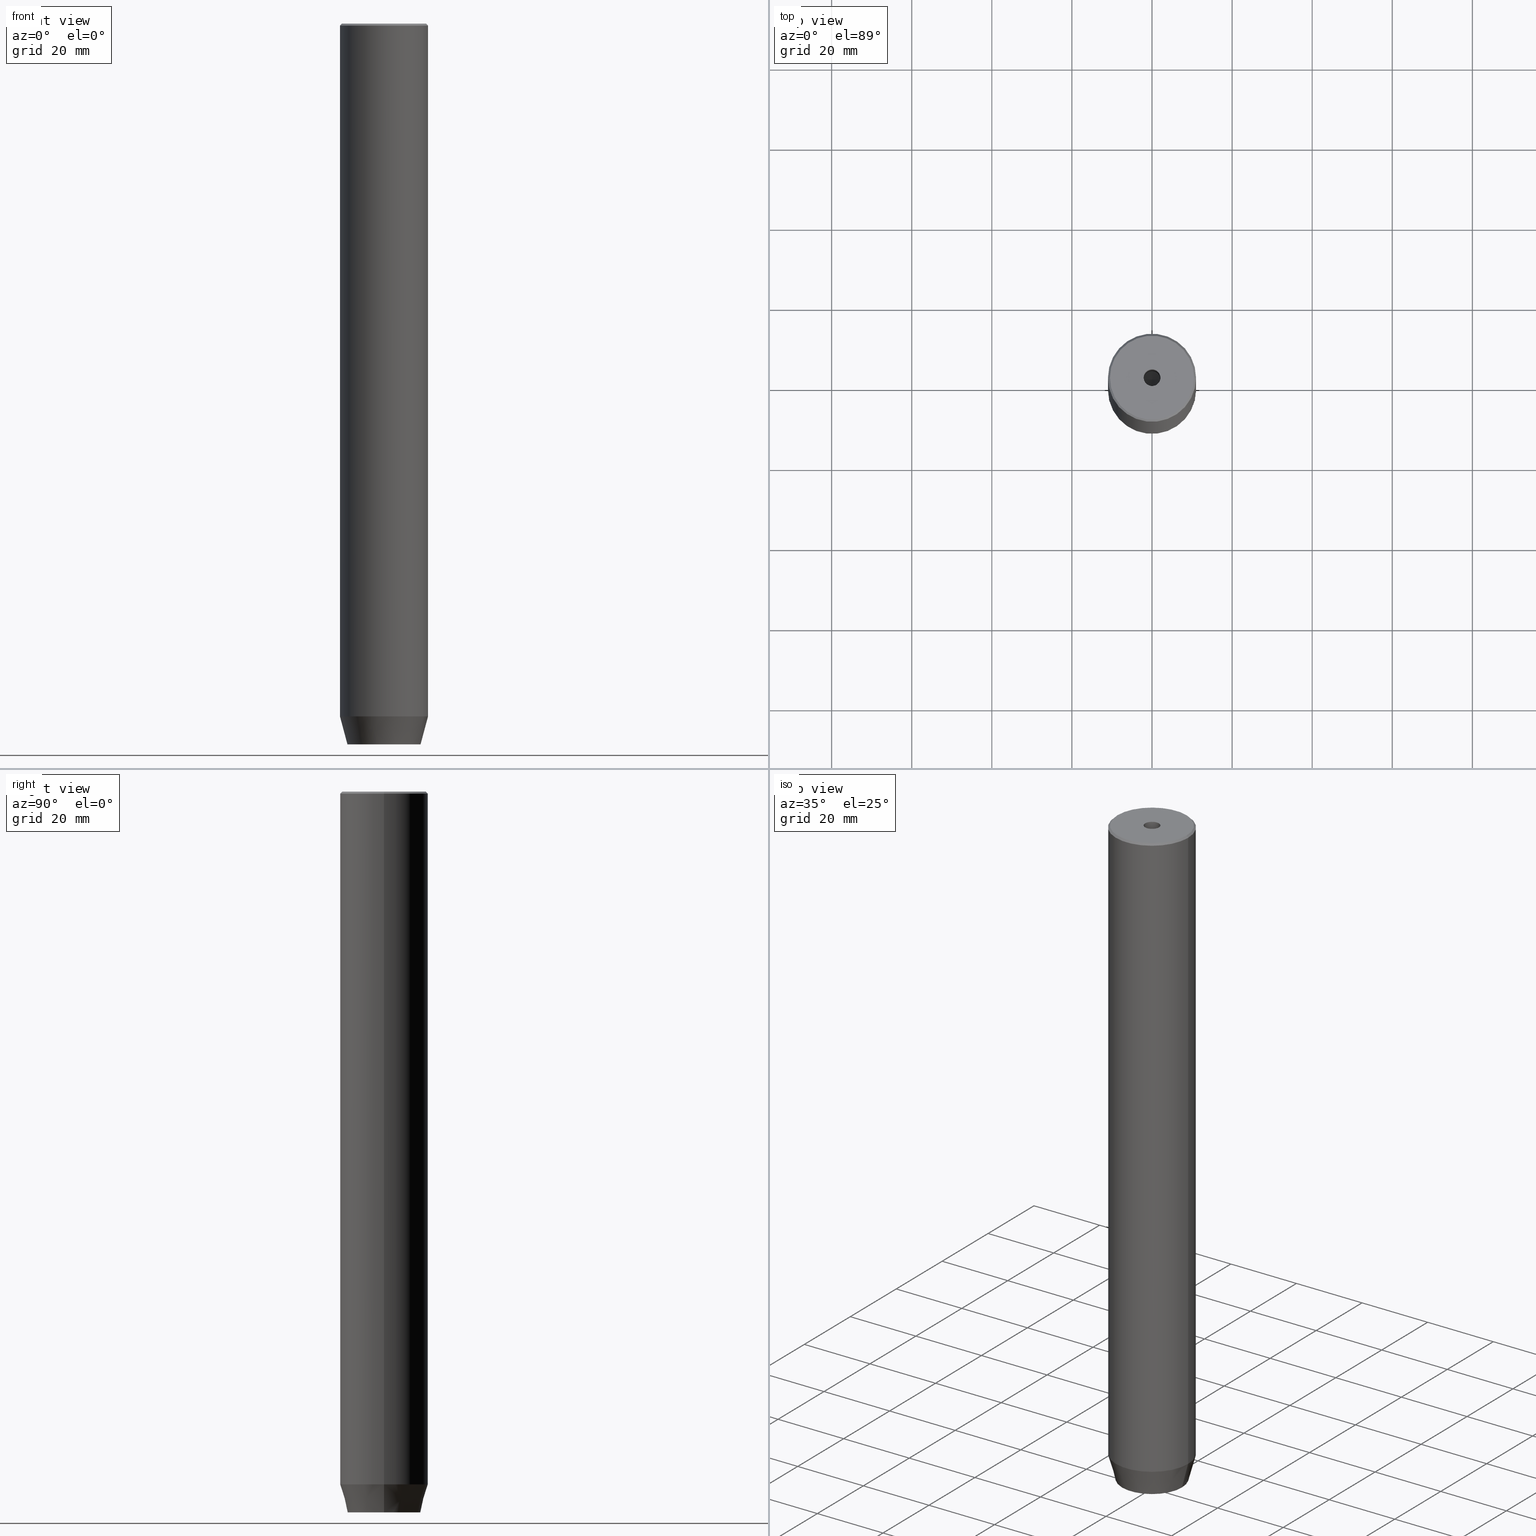
[diagram: canonical four-view strip — front | top / right | iso, engineering-drawing reading convention]
A machine part, canonical four-view strip (front | top / right | iso — engineering-drawing reading convention). The complete STEP part file that produces these views, byte-faithful:
ISO-10303-21;
HEADER;
FILE_DESCRIPTION (( 'STEP AP203' ),
    '1' );
FILE_NAME ('16ba.STEP',
    '2024-01-02T17:18:18',
    ( '' ),
    ( '' ),
    'SwSTEP 2.0',
    'SolidWorks 2019',
    '' );
FILE_SCHEMA (( 'CONFIG_CONTROL_DESIGN' ));
ENDSEC;

DATA;
#1 = AXIS2_PLACEMENT_3D ( 'NONE', #90, #140, #88 ) ;
#2 = ORIENTED_EDGE ( 'NONE', *, *, #89, .T. ) ;
#3 = CONICAL_SURFACE ( 'NONE', #77, 10.50000000000000888, 0.7853981633974378429 ) ;
#4 = DIRECTION ( 'NONE',  ( -0.8660254037844385966, -0.4999999999999999445, 0.000000000000000000 ) ) ;
#5 = VECTOR ( 'NONE', #119, 1000.000000000000000 ) ;
#6 = DATE_TIME_ROLE ( 'creation_date' ) ;
#7 = LINE ( 'NONE', #315, #446 ) ;
#8 = EDGE_CURVE ( 'NONE', #311, #283, #334, .T. ) ;
#9 = PERSON_AND_ORGANIZATION_ROLE ( 'classification_officer' ) ;
#10 = DIRECTION ( 'NONE',  ( 0.8660254037844387076, 0.5000000000000001110, 0.000000000000000000 ) ) ;
#11 = CARTESIAN_POINT ( 'NONE',  ( 2.000000000000000444, 3.464101615137754386, -177.1999999999999886 ) ) ;
#12 = APPLICATION_PROTOCOL_DEFINITION ( 'international standard', 'config_control_design', 1994, #413 ) ;
#13 = VECTOR ( 'NONE', #45, 1000.000000000000114 ) ;
#14 = VECTOR ( 'NONE', #482, 1000.000000000000000 ) ;
#15 = EDGE_CURVE ( 'NONE', #337, #311, #440, .T. ) ;
#16 = DIRECTION ( 'NONE',  ( 0.5000000000000001110, 0.8660254037844385966, -0.000000000000000000 ) ) ;
#17 =( NAMED_UNIT ( * ) PLANE_ANGLE_UNIT ( ) SI_UNIT ( $, .RADIAN. ) );
#18 = LINE ( 'NONE', #72, #129 ) ;
#19 = APPROVAL ( #149, 'NEUR�EN�' ) ;
#20 = ORIENTED_EDGE ( 'NONE', *, *, #134, .F. ) ;
#21 = CARTESIAN_POINT ( 'NONE',  ( 0.000000000000000000, 0.000000000000000000, 0.000000000000000000 ) ) ;
#22 = VERTEX_POINT ( 'NONE', #36 ) ;
#23 = CIRCLE ( 'NONE', #578, 2.099999999999998757 ) ;
#24 = CONICAL_SURFACE ( 'NONE', #426, 2.099999999999995648, 1.029744258676651647 ) ;
#25 = FACE_OUTER_BOUND ( 'NONE', #542, .T. ) ;
#26 = ORIENTED_EDGE ( 'NONE', *, *, #275, .F. ) ;
#27 = EDGE_CURVE ( 'NONE', #387, #176, #23, .T. ) ;
#28 = FACE_OUTER_BOUND ( 'NONE', #329, .T. ) ;
#29 = ORIENTED_EDGE ( 'NONE', *, *, #452, .T. ) ;
#30 = ORIENTED_EDGE ( 'NONE', *, *, #495, .F. ) ;
#31 = CARTESIAN_POINT ( 'NONE',  ( -11.00000000000000000, 1.347111479062088405E-15, -0.5000000000000004441 ) ) ;
#32 = EDGE_CURVE ( 'NONE', #296, #117, #303, .T. ) ;
#33 = PRODUCT ( '16ba', '16ba', '', ( #52 ) ) ;
#34 = ORIENTED_EDGE ( 'NONE', *, *, #416, .T. ) ;
#35 = EDGE_LOOP ( 'NONE', ( #183, #113, #86 ) ) ;
#36 = CARTESIAN_POINT ( 'NONE',  ( -4.000000000000000000, -2.309401076758503368, -180.0000000000000000 ) ) ;
#37 = CARTESIAN_POINT ( 'NONE',  ( -10.50000000000000888, 0.000000000000000000, 0.000000000000000000 ) ) ;
#38 = ORIENTED_EDGE ( 'NONE', *, *, #422, .T. ) ;
#39 = VECTOR ( 'NONE', #108, 1000.000000000000000 ) ;
#40 = ORIENTED_EDGE ( 'NONE', *, *, #298, .F. ) ;
#41 = EDGE_CURVE ( 'NONE', #563, #153, #128, .T. ) ;
#42 = ORIENTED_EDGE ( 'NONE', *, *, #41, .F. ) ;
#43 = DIRECTION ( 'NONE',  ( 1.000000000000000000, 0.000000000000000000, 0.000000000000000000 ) ) ;
#44 = ORIENTED_EDGE ( 'NONE', *, *, #508, .T. ) ;
#45 = DIRECTION ( 'NONE',  ( -0.8660254037844384856, -0.5000000000000002220, 0.000000000000000000 ) ) ;
#46 = PERSON_AND_ORGANIZATION ( #458, #496 ) ;
#47 = EDGE_CURVE ( 'NONE', #156, #22, #352, .T. ) ;
#48 = VECTOR ( 'NONE', #580, 1000.000000000000000 ) ;
#49 = FACE_OUTER_BOUND ( 'NONE', #421, .T. ) ;
#50 = DATE_AND_TIME ( #364, #199 ) ;
#51 = DIRECTION ( 'NONE',  ( -0.000000000000000000, -0.000000000000000000, 1.000000000000000000 ) ) ;
#52 = MECHANICAL_CONTEXT ( 'NONE', #413, 'mechanical' ) ;
#53 = LINE ( 'NONE', #363, #13 ) ;
#54 = EDGE_CURVE ( 'NONE', #195, #109, #360, .T. ) ;
#55 = VECTOR ( 'NONE', #214, 1000.000000000000114 ) ;
#56 = LINE ( 'NONE', #368, #152 ) ;
#57 = AXIS2_PLACEMENT_3D ( 'NONE', #515, #100, #565 ) ;
#58 =( GEOMETRIC_REPRESENTATION_CONTEXT ( 3 ) GLOBAL_UNCERTAINTY_ASSIGNED_CONTEXT ( ( #339 ) ) GLOBAL_UNIT_ASSIGNED_CONTEXT ( ( #125, #17, #250 ) ) REPRESENTATION_CONTEXT ( 'NONE', 'WORKASPACE' ) );
#59 = SHAPE_DEFINITION_REPRESENTATION ( #533, #67 ) ;
#60 = LINE ( 'NONE', #282, #407 ) ;
#61 = ORIENTED_EDGE ( 'NONE', *, *, #403, .F. ) ;
#62 = DIRECTION ( 'NONE',  ( -0.000000000000000000, -0.000000000000000000, -1.000000000000000000 ) ) ;
#63 = ORIENTED_EDGE ( 'NONE', *, *, #583, .F. ) ;
#64 = ADVANCED_FACE ( 'NONE', ( #556, #465 ), #312, .T. ) ;
#65 = DIRECTION ( 'NONE',  ( 0.8660254037844387076, 0.5000000000000001110, 0.000000000000000000 ) ) ;
#66 = EDGE_LOOP ( 'NONE', ( #243, #428, #254, #107 ) ) ;
#67 = ADVANCED_BREP_SHAPE_REPRESENTATION ( '16ba', ( #333, #338 ), #58 ) ;
#68 = VECTOR ( 'NONE', #492, 1000.000000000000000 ) ;
#69 = AXIS2_PLACEMENT_3D ( 'NONE', #461, #398, #269 ) ;
#70 = CARTESIAN_POINT ( 'NONE',  ( -9.124355652982133691, 1.232261386766375507E-15, -180.0000000000000000 ) ) ;
#71 = ORIENTED_EDGE ( 'NONE', *, *, #262, .T. ) ;
#72 = CARTESIAN_POINT ( 'NONE',  ( -2.000000000000000888, -3.464101615137754386, -177.1999999999999886 ) ) ;
#73 = CARTESIAN_POINT ( 'NONE',  ( 0.000000000000000000, 0.000000000000000000, -0.5000000000000004441 ) ) ;
#74 = EDGE_LOOP ( 'NONE', ( #380, #400, #82 ) ) ;
#75 = EDGE_CURVE ( 'NONE', #575, #337, #545, .T. ) ;
#76 = ORIENTED_EDGE ( 'NONE', *, *, #159, .T. ) ;
#77 = AXIS2_PLACEMENT_3D ( 'NONE', #257, #438, #177 ) ;
#78 = DIRECTION ( 'NONE',  ( 1.000000000000000000, 0.000000000000000000, 0.000000000000000000 ) ) ;
#79 = CARTESIAN_POINT ( 'NONE',  ( 10.50000000000000888, 1.316495309083405209E-15, 0.000000000000000000 ) ) ;
#80 = CARTESIAN_POINT ( 'NONE',  ( 0.000000000000000000, 0.000000000000000000, 0.000000000000000000 ) ) ;
#81 = EDGE_CURVE ( 'NONE', #239, #327, #504, .T. ) ;
#82 = ORIENTED_EDGE ( 'NONE', *, *, #536, .T. ) ;
#83 = VECTOR ( 'NONE', #348, 1000.000000000000000 ) ;
#84 = CONICAL_SURFACE ( 'NONE', #242, 2.099999999999995648, 1.029744258676651647 ) ;
#85 = CYLINDRICAL_SURFACE ( 'NONE', #273, 11.00000000000000000 ) ;
#86 = ORIENTED_EDGE ( 'NONE', *, *, #341, .T. ) ;
#87 = DIRECTION ( 'NONE',  ( -0.000000000000000000, -0.000000000000000000, 1.000000000000000000 ) ) ;
#88 = DIRECTION ( 'NONE',  ( -1.000000000000000000, 0.000000000000000000, -0.000000000000000000 ) ) ;
#89 = EDGE_CURVE ( 'NONE', #156, #131, #227, .T. ) ;
#90 = CARTESIAN_POINT ( 'NONE',  ( 0.000000000000000000, 9.124355652982133691, -180.0000000000000000 ) ) ;
#91 = CARTESIAN_POINT ( 'NONE',  ( 9.124355652982133691, 0.000000000000000000, -180.0000000000000000 ) ) ;
#92 = AXIS2_PLACEMENT_3D ( 'NONE', #21, #241, #137 ) ;
#93 = LINE ( 'NONE', #319, #366 ) ;
#94 = AXIS2_PLACEMENT_3D ( 'NONE', #73, #165, #340 ) ;
#95 = COORDINATED_UNIVERSAL_TIME_OFFSET ( 1, 0, .AHEAD. ) ;
#96 = CARTESIAN_POINT ( 'NONE',  ( -4.000000000000000000, 2.309401076758503368, -177.1999999999999886 ) ) ;
#97 = PERSON_AND_ORGANIZATION ( #458, #496 ) ;
#98 = CARTESIAN_POINT ( 'NONE',  ( 2.099999999999998757, 0.000000000000000000, -1.990051048614449116E-16 ) ) ;
#99 = CARTESIAN_POINT ( 'NONE',  ( 4.336808689942017736E-16, -4.618802153517006737, -177.1999999999999886 ) ) ;
#100 = DIRECTION ( 'NONE',  ( -0.000000000000000000, -0.000000000000000000, 1.000000000000000000 ) ) ;
#101 = AXIS2_PLACEMENT_3D ( 'NONE', #454, #233, #462 ) ;
#102 = ORIENTED_EDGE ( 'NONE', *, *, #47, .F. ) ;
#103 = CARTESIAN_POINT ( 'NONE',  ( 0.000000000000000000, 0.000000000000000000, 0.000000000000000000 ) ) ;
#104 = EDGE_LOOP ( 'NONE', ( #582, #40, #573, #29 ) ) ;
#105 = EDGE_CURVE ( 'NONE', #327, #535, #93, .T. ) ;
#106 = DIRECTION ( 'NONE',  ( -0.000000000000000000, -0.000000000000000000, 1.000000000000000000 ) ) ;
#107 = ORIENTED_EDGE ( 'NONE', *, *, #27, .T. ) ;
#108 = DIRECTION ( 'NONE',  ( -0.000000000000000000, -0.000000000000000000, -1.000000000000000000 ) ) ;
#109 = VERTEX_POINT ( 'NONE', #419 ) ;
#110 = VECTOR ( 'NONE', #456, 1000.000000000000000 ) ;
#111 = CARTESIAN_POINT ( 'NONE',  ( 4.000000000000000000, -2.309401076758502480, -180.0000000000000000 ) ) ;
#112 = ADVANCED_FACE ( 'NONE', ( #405 ), #509, .F. ) ;
#113 = ORIENTED_EDGE ( 'NONE', *, *, #255, .T. ) ;
#114 = ORIENTED_EDGE ( 'NONE', *, *, #193, .T. ) ;
#115 = DIRECTION ( 'NONE',  ( -0.000000000000000000, -0.000000000000000000, 1.000000000000000000 ) ) ;
#116 = ORIENTED_EDGE ( 'NONE', *, *, #27, .F. ) ;
#117 = VERTEX_POINT ( 'NONE', #191 ) ;
#118 = APPROVAL_PERSON_ORGANIZATION ( #510, #330, #513 ) ;
#119 = DIRECTION ( 'NONE',  ( -0.000000000000000000, -0.000000000000000000, 1.000000000000000000 ) ) ;
#120 = CARTESIAN_POINT ( 'NONE',  ( -11.00000000000000000, 1.347111479062088405E-15, -173.0000000000000000 ) ) ;
#121 = CARTESIAN_POINT ( 'NONE',  ( 0.000000000000000000, 0.000000000000000000, 0.000000000000000000 ) ) ;
#122 = CC_DESIGN_DATE_AND_TIME_ASSIGNMENT ( #455, #6, ( #443 ) ) ;
#123 = LINE ( 'NONE', #425, #572 ) ;
#124 = VERTEX_POINT ( 'NONE', #99 ) ;
#125 =( LENGTH_UNIT ( ) NAMED_UNIT ( * ) SI_UNIT ( .MILLI., .METRE. ) );
#126 = DIRECTION ( 'NONE',  ( -0.000000000000000000, -0.000000000000000000, 1.000000000000000000 ) ) ;
#127 = DIRECTION ( 'NONE',  ( -0.000000000000000000, -0.000000000000000000, -1.000000000000000000 ) ) ;
#128 = CIRCLE ( 'NONE', #466, 10.50000000000000888 ) ;
#129 = VECTOR ( 'NONE', #432, 1000.000000000000114 ) ;
#130 = CARTESIAN_POINT ( 'NONE',  ( 0.000000000000000000, 0.000000000000000000, -1.990051048614449116E-16 ) ) ;
#131 = VERTEX_POINT ( 'NONE', #96 ) ;
#132 = DIRECTION ( 'NONE',  ( 1.000000000000000000, 0.000000000000000000, 0.000000000000000000 ) ) ;
#133 = LINE ( 'NONE', #184, #110 ) ;
#134 = EDGE_CURVE ( 'NONE', #372, #22, #56, .T. ) ;
#135 = PERSON_AND_ORGANIZATION ( #458, #496 ) ;
#136 = CALENDAR_DATE ( 2024, 2, 1 ) ;
#137 = DIRECTION ( 'NONE',  ( -1.000000000000000000, 0.000000000000000000, 0.000000000000000000 ) ) ;
#138 = DIRECTION ( 'NONE',  ( 1.000000000000000000, 0.000000000000000000, 0.000000000000000000 ) ) ;
#139 = COORDINATED_UNIVERSAL_TIME_OFFSET ( 1, 0, .AHEAD. ) ;
#140 = DIRECTION ( 'NONE',  ( 0.000000000000000000, 0.000000000000000000, -1.000000000000000000 ) ) ;
#141 = DATE_AND_TIME ( #553, #539 ) ;
#142 = AXIS2_PLACEMENT_3D ( 'NONE', #313, #547, #459 ) ;
#143 = PLANE ( 'NONE',  #415 ) ;
#144 = PRODUCT_DEFINITION_FORMATION_WITH_SPECIFIED_SOURCE ( 'LIBOVOLN�', '', #33, .NOT_KNOWN. ) ;
#145 = CARTESIAN_POINT ( 'NONE',  ( 0.000000000000000000, 0.000000000000000000, -173.0000000000000000 ) ) ;
#146 = ADVANCED_FACE ( 'NONE', ( #410, #271 ), #186, .T. ) ;
#147 = CARTESIAN_POINT ( 'NONE',  ( -2.099999999999998757, 2.571758278209440478E-16, -1.990051048614449116E-16 ) ) ;
#148 = PERSON_AND_ORGANIZATION_ROLE ( 'design_owner' ) ;
#149 = APPROVAL_STATUS ( 'not_yet_approved' ) ;
#150 = CARTESIAN_POINT ( 'NONE',  ( 2.000000000000000888, -3.464101615137754386, -180.0000000000000000 ) ) ;
#151 = CARTESIAN_POINT ( 'NONE',  ( -4.000000000000000000, 2.309401076758503368, -180.0000000000000000 ) ) ;
#152 = VECTOR ( 'NONE', #278, 1000.000000000000114 ) ;
#153 = VERTEX_POINT ( 'NONE', #512 ) ;
#154 = EDGE_CURVE ( 'NONE', #166, #124, #53, .T. ) ;
#155 = DIRECTION ( 'NONE',  ( -0.000000000000000000, -0.000000000000000000, 1.000000000000000000 ) ) ;
#156 = VERTEX_POINT ( 'NONE', #188 ) ;
#157 = DIRECTION ( 'NONE',  ( 1.000000000000000000, 0.000000000000000000, 0.000000000000000000 ) ) ;
#158 = ORIENTED_EDGE ( 'NONE', *, *, #81, .T. ) ;
#159 = EDGE_CURVE ( 'NONE', #535, #292, #230, .T. ) ;
#160 = DIRECTION ( 'NONE',  ( 1.000000000000000000, 0.000000000000000000, 0.000000000000000000 ) ) ;
#161 = ORIENTED_EDGE ( 'NONE', *, *, #574, .F. ) ;
#162 = AXIS2_PLACEMENT_3D ( 'NONE', #561, #249, #160 ) ;
#163 = AXIS2_PLACEMENT_3D ( 'NONE', #103, #106, #202 ) ;
#164 = CC_DESIGN_SECURITY_CLASSIFICATION ( #447, ( #144 ) ) ;
#165 = DIRECTION ( 'NONE',  ( 0.000000000000000000, 0.000000000000000000, -1.000000000000000000 ) ) ;
#166 = VERTEX_POINT ( 'NONE', #365 ) ;
#167 = DIRECTION ( 'NONE',  ( 1.000000000000000000, 0.000000000000000000, 0.000000000000000000 ) ) ;
#168 = EDGE_LOOP ( 'NONE', ( #404, #524, #342, #305 ) ) ;
#169 = FACE_OUTER_BOUND ( 'NONE', #568, .T. ) ;
#170 = FACE_OUTER_BOUND ( 'NONE', #450, .T. ) ;
#171 = DIRECTION ( 'NONE',  ( 1.000000000000000000, 0.000000000000000000, 0.000000000000000000 ) ) ;
#172 = ADVANCED_FACE ( 'NONE', ( #223 ), #321, .F. ) ;
#173 = PLANE ( 'NONE',  #507 ) ;
#174 = CONICAL_SURFACE ( 'NONE', #57, 11.00000000000000000, 0.2617993877991500740 ) ;
#175 = DIRECTION ( 'NONE',  ( -0.5000000000000003331, -0.8660254037844385966, 0.000000000000000000 ) ) ;
#176 = VERTEX_POINT ( 'NONE', #147 ) ;
#177 = DIRECTION ( 'NONE',  ( -1.000000000000000000, 0.000000000000000000, 0.000000000000000000 ) ) ;
#178 = ORIENTED_EDGE ( 'NONE', *, *, #8, .F. ) ;
#179 = CARTESIAN_POINT ( 'NONE',  ( 0.000000000000000000, 0.000000000000000000, -173.0000000000000000 ) ) ;
#180 = ADVANCED_FACE ( 'NONE', ( #49 ), #143, .F. ) ;
#181 = ORIENTED_EDGE ( 'NONE', *, *, #75, .F. ) ;
#182 = CALENDAR_DATE ( 2024, 2, 1 ) ;
#183 = ORIENTED_EDGE ( 'NONE', *, *, #32, .F. ) ;
#184 = CARTESIAN_POINT ( 'NONE',  ( -4.000000000000000000, 0.000000000000000000, -180.0000000000000000 ) ) ;
#185 = SECURITY_CLASSIFICATION_LEVEL ( 'unclassified' ) ;
#186 = PLANE ( 'NONE',  #101 ) ;
#187 = CARTESIAN_POINT ( 'NONE',  ( 4.000000000000000000, 0.000000000000000000, -177.1999999999999886 ) ) ;
#188 = CARTESIAN_POINT ( 'NONE',  ( -4.000000000000000000, -2.309401076758503368, -177.1999999999999886 ) ) ;
#189 = PLANE ( 'NONE',  #69 ) ;
#190 = EDGE_CURVE ( 'NONE', #22, #239, #133, .T. ) ;
#191 = CARTESIAN_POINT ( 'NONE',  ( 2.099999999999995648, 0.000000000000000000, -25.00000000000000000 ) ) ;
#192 = CYLINDRICAL_SURFACE ( 'NONE', #163, 11.00000000000000000 ) ;
#193 = EDGE_CURVE ( 'NONE', #109, #166, #7, .T. ) ;
#194 = CARTESIAN_POINT ( 'NONE',  ( -2.000000000000000000, 3.464101615137754830, -177.1999999999999886 ) ) ;
#195 = VERTEX_POINT ( 'NONE', #468 ) ;
#196 = CYLINDRICAL_SURFACE ( 'NONE', #309, 2.099999999999996980 ) ;
#197 = VECTOR ( 'NONE', #65, 999.9999999999998863 ) ;
#198 = ORIENTED_EDGE ( 'NONE', *, *, #47, .T. ) ;
#199 = LOCAL_TIME ( 18, 18, 18.00000000000000000, #272 ) ;
#200 = DIRECTION ( 'NONE',  ( -0.000000000000000000, -0.000000000000000000, 1.000000000000000000 ) ) ;
#201 = ORIENTED_EDGE ( 'NONE', *, *, #15, .F. ) ;
#202 = DIRECTION ( 'NONE',  ( 1.000000000000000000, 0.000000000000000000, 0.000000000000000000 ) ) ;
#203 = ORIENTED_EDGE ( 'NONE', *, *, #516, .T. ) ;
#204 = CC_DESIGN_DATE_AND_TIME_ASSIGNMENT ( #141, #277, ( #447 ) ) ;
#205 = VECTOR ( 'NONE', #127, 1000.000000000000000 ) ;
#206 = EDGE_LOOP ( 'NONE', ( #201, #220, #34, #178 ) ) ;
#207 = AXIS2_PLACEMENT_3D ( 'NONE', #145, #306, #302 ) ;
#208 = CARTESIAN_POINT ( 'NONE',  ( -2.099999999999995648, 2.571758278209436040E-16, -25.00000000000000000 ) ) ;
#209 = EDGE_LOOP ( 'NONE', ( #203, #531 ) ) ;
#210 = DIRECTION ( 'NONE',  ( -0.000000000000000000, -0.000000000000000000, 1.000000000000000000 ) ) ;
#211 = CARTESIAN_POINT ( 'NONE',  ( 11.00000000000000000, 0.000000000000000000, 0.000000000000000000 ) ) ;
#212 = EDGE_CURVE ( 'NONE', #292, #372, #328, .T. ) ;
#213 = CARTESIAN_POINT ( 'NONE',  ( 0.000000000000000000, 0.000000000000000000, -1.990051048614449116E-16 ) ) ;
#214 = DIRECTION ( 'NONE',  ( 0.8571673007021108903, 0.000000000000000000, 0.5150380749100565980 ) ) ;
#215 = CIRCLE ( 'NONE', #264, 10.50000000000000888 ) ;
#216 = EDGE_LOOP ( 'NONE', ( #437, #26, #469, #198 ) ) ;
#217 = DIRECTION ( 'NONE',  ( 1.000000000000000000, 0.000000000000000000, 0.000000000000000000 ) ) ;
#218 = EDGE_CURVE ( 'NONE', #131, #195, #567, .T. ) ;
#219 = CARTESIAN_POINT ( 'NONE',  ( -2.099999999999996980, 2.571758278209438013E-16, 0.000000000000000000 ) ) ;
#220 = ORIENTED_EDGE ( 'NONE', *, *, #320, .T. ) ;
#221 = ORIENTED_EDGE ( 'NONE', *, *, #75, .T. ) ;
#222 = LINE ( 'NONE', #354, #435 ) ;
#223 = FACE_OUTER_BOUND ( 'NONE', #104, .T. ) ;
#224 = PERSON_AND_ORGANIZATION_ROLE ( 'creator' ) ;
#225 = DIRECTION ( 'NONE',  ( 0.8660254037844385966, -0.5000000000000001110, 0.000000000000000000 ) ) ;
#226 = PERSON_AND_ORGANIZATION ( #458, #496 ) ;
#227 = LINE ( 'NONE', #558, #392 ) ;
#228 = CC_DESIGN_PERSON_AND_ORGANIZATION_ASSIGNMENT ( #135, #411, ( #443 ) ) ;
#229 = APPROVAL_DATE_TIME ( #50, #330 ) ;
#230 = LINE ( 'NONE', #502, #557 ) ;
#231 = LINE ( 'NONE', #219, #476 ) ;
#232 = AXIS2_PLACEMENT_3D ( 'NONE', #570, #474, #326 ) ;
#233 = DIRECTION ( 'NONE',  ( 0.000000000000000000, -0.000000000000000000, 1.000000000000000000 ) ) ;
#234 = LOCAL_TIME ( 18, 18, 18.00000000000000000, #586 ) ;
#235 = ADVANCED_FACE ( 'NONE', ( #28 ), #196, .F. ) ;
#236 = LINE ( 'NONE', #290, #263 ) ;
#237 = ORIENTED_EDGE ( 'NONE', *, *, #452, .F. ) ;
#238 = DIRECTION ( 'NONE',  ( -0.000000000000000000, -0.000000000000000000, 1.000000000000000000 ) ) ;
#239 = VERTEX_POINT ( 'NONE', #151 ) ;
#240 = AXIS2_PLACEMENT_3D ( 'NONE', #179, #487, #78 ) ;
#241 = DIRECTION ( 'NONE',  ( 0.000000000000000000, 0.000000000000000000, -1.000000000000000000 ) ) ;
#242 = AXIS2_PLACEMENT_3D ( 'NONE', #471, #238, #520 ) ;
#243 = ORIENTED_EDGE ( 'NONE', *, *, #394, .F. ) ;
#244 = APPROVAL_PERSON_ORGANIZATION ( #226, #324, #401 ) ;
#245 = CARTESIAN_POINT ( 'NONE',  ( 4.336808689942017736E-16, -4.618802153517006737, -177.1999999999999886 ) ) ;
#246 = ORIENTED_EDGE ( 'NONE', *, *, #569, .F. ) ;
#247 = ADVANCED_FACE ( 'NONE', ( #478 ), #174, .T. ) ;
#248 = CARTESIAN_POINT ( 'NONE',  ( 10.50000000000000888, 1.285879139104722014E-15, 0.000000000000000000 ) ) ;
#249 = DIRECTION ( 'NONE',  ( -0.000000000000000000, -0.000000000000000000, 1.000000000000000000 ) ) ;
#250 =( NAMED_UNIT ( * ) SI_UNIT ( $, .STERADIAN. ) SOLID_ANGLE_UNIT ( ) );
#251 = EDGE_LOOP ( 'NONE', ( #221, #566, #347, #585 ) ) ;
#252 = FACE_OUTER_BOUND ( 'NONE', #168, .T. ) ;
#253 = VECTOR ( 'NONE', #225, 1000.000000000000000 ) ;
#254 = ORIENTED_EDGE ( 'NONE', *, *, #289, .T. ) ;
#255 = EDGE_CURVE ( 'NONE', #296, #475, #60, .T. ) ;
#256 = VERTEX_POINT ( 'NONE', #379 ) ;
#257 = CARTESIAN_POINT ( 'NONE',  ( 0.000000000000000000, 0.000000000000000000, 0.000000000000000000 ) ) ;
#258 = DIRECTION ( 'NONE',  ( 0.2588190451025213501, 0.000000000000000000, 0.9659258262890680902 ) ) ;
#259 = CC_DESIGN_PERSON_AND_ORGANIZATION_ASSIGNMENT ( #409, #9, ( #447 ) ) ;
#260 = ORIENTED_EDGE ( 'NONE', *, *, #314, .F. ) ;
#261 = ORIENTED_EDGE ( 'NONE', *, *, #560, .F. ) ;
#262 = EDGE_CURVE ( 'NONE', #256, #472, #325, .T. ) ;
#263 = VECTOR ( 'NONE', #200, 1000.000000000000000 ) ;
#264 = AXIS2_PLACEMENT_3D ( 'NONE', #121, #304, #448 ) ;
#265 = DIRECTION ( 'NONE',  ( -0.000000000000000000, -0.000000000000000000, 1.000000000000000000 ) ) ;
#266 = ORIENTED_EDGE ( 'NONE', *, *, #275, .T. ) ;
#267 = CALENDAR_DATE ( 2024, 2, 1 ) ;
#268 = CC_DESIGN_PERSON_AND_ORGANIZATION_ASSIGNMENT ( #406, #506, ( #144 ) ) ;
#269 = DIRECTION ( 'NONE',  ( 0.8660254037844384856, 0.5000000000000002220, 0.000000000000000000 ) ) ;
#270 = DIRECTION ( 'NONE',  ( 0.8660254037844385966, -0.5000000000000001110, 0.000000000000000000 ) ) ;
#271 = FACE_OUTER_BOUND ( 'NONE', #209, .T. ) ;
#272 = COORDINATED_UNIVERSAL_TIME_OFFSET ( 1, 0, .AHEAD. ) ;
#273 = AXIS2_PLACEMENT_3D ( 'NONE', #511, #87, #351 ) ;
#274 = CC_DESIGN_APPROVAL ( #19, ( #447 ) ) ;
#275 = EDGE_CURVE ( 'NONE', #131, #239, #429, .T. ) ;
#276 = CARTESIAN_POINT ( 'NONE',  ( 0.000000000000000000, 0.000000000000000000, -180.0000000000000000 ) ) ;
#277 = DATE_TIME_ROLE ( 'classification_date' ) ;
#278 = DIRECTION ( 'NONE',  ( -0.8660254037844384856, 0.5000000000000002220, 0.000000000000000000 ) ) ;
#279 = DIRECTION ( 'NONE',  ( 0.000000000000000000, -1.000000000000000000, 0.000000000000000000 ) ) ;
#280 = ADVANCED_FACE ( 'NONE', ( #25 ), #192, .T. ) ;
#281 = VECTOR ( 'NONE', #427, 1000.000000000000114 ) ;
#282 = CARTESIAN_POINT ( 'NONE',  ( -2.099999999999995648, 2.571758278209436040E-16, -25.00000000000000000 ) ) ;
#283 = VERTEX_POINT ( 'NONE', #331 ) ;
#284 = FACE_OUTER_BOUND ( 'NONE', #74, .T. ) ;
#285 = ORIENTED_EDGE ( 'NONE', *, *, #289, .F. ) ;
#286 = DIRECTION ( 'NONE',  ( -0.000000000000000000, 0.000000000000000000, -1.000000000000000000 ) ) ;
#287 = CARTESIAN_POINT ( 'NONE',  ( 2.168404344971008868E-16, 4.618802153517006737, -180.0000000000000000 ) ) ;
#288 = ORIENTED_EDGE ( 'NONE', *, *, #193, .F. ) ;
#289 = EDGE_CURVE ( 'NONE', #117, #387, #236, .T. ) ;
#290 = CARTESIAN_POINT ( 'NONE',  ( 2.099999999999996980, 0.000000000000000000, 0.000000000000000000 ) ) ;
#291 = AXIS2_PLACEMENT_3D ( 'NONE', #11, #16, #408 ) ;
#292 = VERTEX_POINT ( 'NONE', #111 ) ;
#293 = CC_DESIGN_APPROVAL ( #330, ( #443 ) ) ;
#294 = LINE ( 'NONE', #420, #538 ) ;
#295 = CARTESIAN_POINT ( 'NONE',  ( 4.000000000000000000, -2.309401076758502480, -177.1999999999999886 ) ) ;
#296 = VERTEX_POINT ( 'NONE', #370 ) ;
#297 = ORIENTED_EDGE ( 'NONE', *, *, #212, .F. ) ;
#298 = EDGE_CURVE ( 'NONE', #109, #535, #294, .T. ) ;
#299 = DIRECTION ( 'NONE',  ( -1.000000000000000000, 0.000000000000000000, -0.000000000000000000 ) ) ;
#300 = ORIENTED_EDGE ( 'NONE', *, *, #134, .T. ) ;
#301 = CONICAL_SURFACE ( 'NONE', #92, 10.50000000000000888, 0.7853981633974378429 ) ;
#302 = DIRECTION ( 'NONE',  ( 1.000000000000000000, 0.000000000000000000, 0.000000000000000000 ) ) ;
#303 = LINE ( 'NONE', #489, #55 ) ;
#304 = DIRECTION ( 'NONE',  ( -0.000000000000000000, -0.000000000000000000, 1.000000000000000000 ) ) ;
#305 = ORIENTED_EDGE ( 'NONE', *, *, #262, .F. ) ;
#306 = DIRECTION ( 'NONE',  ( -0.000000000000000000, -0.000000000000000000, 1.000000000000000000 ) ) ;
#307 = ORIENTED_EDGE ( 'NONE', *, *, #159, .F. ) ;
#308 = PRODUCT_RELATED_PRODUCT_CATEGORY ( 'detail', '', ( #33 ) ) ;
#309 = AXIS2_PLACEMENT_3D ( 'NONE', #481, #155, #157 ) ;
#310 = AXIS2_PLACEMENT_3D ( 'NONE', #187, #554, #286 ) ;
#311 = VERTEX_POINT ( 'NONE', #562 ) ;
#312 = PLANE ( 'NONE',  #1 ) ;
#313 = CARTESIAN_POINT ( 'NONE',  ( -4.000000000000000000, 0.000000000000000000, -177.1999999999999886 ) ) ;
#314 = EDGE_CURVE ( 'NONE', #124, #156, #18, .T. ) ;
#315 = CARTESIAN_POINT ( 'NONE',  ( 4.000000000000000000, 0.000000000000000000, -177.1999999999999886 ) ) ;
#316 = CARTESIAN_POINT ( 'NONE',  ( 0.000000000000000000, 0.000000000000000000, 0.000000000000000000 ) ) ;
#317 = VECTOR ( 'NONE', #126, 1000.000000000000000 ) ;
#318 = AXIS2_PLACEMENT_3D ( 'NONE', #130, #497, #43 ) ;
#319 = CARTESIAN_POINT ( 'NONE',  ( 2.000000000000000444, 3.464101615137754386, -180.0000000000000000 ) ) ;
#320 = EDGE_CURVE ( 'NONE', #337, #575, #467, .T. ) ;
#321 = PLANE ( 'NONE',  #291 ) ;
#322 = DATE_AND_TIME ( #136, #383 ) ;
#323 = DIRECTION ( 'NONE',  ( 0.000000000000000000, -1.000000000000000000, 0.000000000000000000 ) ) ;
#324 = APPROVAL ( #451, 'NEUR�EN�' ) ;
#325 = CIRCLE ( 'NONE', #517, 11.00000000000000000 ) ;
#326 = DIRECTION ( 'NONE',  ( 1.000000000000000000, 0.000000000000000000, 0.000000000000000000 ) ) ;
#327 = VERTEX_POINT ( 'NONE', #287 ) ;
#328 = LINE ( 'NONE', #150, #281 ) ;
#329 = EDGE_LOOP ( 'NONE', ( #519, #491, #424, #285 ) ) ;
#330 = APPROVAL ( #464, 'NEUR�EN�' ) ;
#331 = CARTESIAN_POINT ( 'NONE',  ( 11.00000000000000000, 0.000000000000000000, -173.0000000000000000 ) ) ;
#332 = ORIENTED_EDGE ( 'NONE', *, *, #495, .T. ) ;
#333 = MANIFOLD_SOLID_BREP ( 'Vrt�k z�vitn�ku pro M5 z�vit1', #505 ) ;
#334 = CIRCLE ( 'NONE', #240, 11.00000000000000000 ) ;
#335 = CARTESIAN_POINT ( 'NONE',  ( -4.000000000000000000, 2.309401076758503368, -177.1999999999999886 ) ) ;
#336 = CIRCLE ( 'NONE', #232, 2.099999999999995648 ) ;
#337 = VERTEX_POINT ( 'NONE', #70 ) ;
#338 = AXIS2_PLACEMENT_3D ( 'NONE', #316, #369, #549 ) ;
#339 = UNCERTAINTY_MEASURE_WITH_UNIT (LENGTH_MEASURE( 1.000000000000000082E-05 ), #125, 'distance_accuracy_value', 'NONE');
#340 = DIRECTION ( 'NONE',  ( 1.000000000000000000, 0.000000000000000000, 0.000000000000000000 ) ) ;
#341 = EDGE_CURVE ( 'NONE', #475, #117, #336, .T. ) ;
#342 = ORIENTED_EDGE ( 'NONE', *, *, #403, .T. ) ;
#343 = CARTESIAN_POINT ( 'NONE',  ( 0.000000000000000000, 0.000000000000000000, -177.1999999999999886 ) ) ;
#344 = ORIENTED_EDGE ( 'NONE', *, *, #8, .T. ) ;
#345 = CARTESIAN_POINT ( 'NONE',  ( -11.00000000000000000, 1.347111479062088405E-15, 0.000000000000000000 ) ) ;
#346 = CARTESIAN_POINT ( 'NONE',  ( -2.000000000000000888, -3.464101615137754386, -177.1999999999999886 ) ) ;
#347 = ORIENTED_EDGE ( 'NONE', *, *, #422, .F. ) ;
#348 = DIRECTION ( 'NONE',  ( -0.2588190451025213501, 3.169619151431772337E-17, 0.9659258262890680902 ) ) ;
#349 = CYLINDRICAL_SURFACE ( 'NONE', #579, 2.099999999999996980 ) ;
#350 = EDGE_CURVE ( 'NONE', #124, #372, #518, .T. ) ;
#351 = DIRECTION ( 'NONE',  ( 1.000000000000000000, 0.000000000000000000, 0.000000000000000000 ) ) ;
#352 = LINE ( 'NONE', #544, #205 ) ;
#353 = DIRECTION ( 'NONE',  ( 1.000000000000000000, 0.000000000000000000, 0.000000000000000000 ) ) ;
#354 = CARTESIAN_POINT ( 'NONE',  ( 11.00000000000000000, 0.000000000000000000, -173.0000000000000000 ) ) ;
#355 = CARTESIAN_POINT ( 'NONE',  ( -2.000000000000000000, 3.464101615137754830, -177.1999999999999886 ) ) ;
#356 = DATE_AND_TIME ( #182, #234 ) ;
#357 = VECTOR ( 'NONE', #62, 1000.000000000000000 ) ;
#358 = ORIENTED_EDGE ( 'NONE', *, *, #350, .T. ) ;
#359 = FACE_OUTER_BOUND ( 'NONE', #251, .T. ) ;
#360 = LINE ( 'NONE', #412, #253 ) ;
#361 = ADVANCED_FACE ( 'NONE', ( #284 ), #84, .F. ) ;
#362 = DIRECTION ( 'NONE',  ( -0.000000000000000000, -0.000000000000000000, 1.000000000000000000 ) ) ;
#363 = CARTESIAN_POINT ( 'NONE',  ( 2.000000000000000888, -3.464101615137754386, -177.1999999999999886 ) ) ;
#364 = CALENDAR_DATE ( 2024, 2, 1 ) ;
#365 = CARTESIAN_POINT ( 'NONE',  ( 4.000000000000000000, -2.309401076758502480, -177.1999999999999886 ) ) ;
#366 = VECTOR ( 'NONE', #270, 1000.000000000000000 ) ;
#367 = ADVANCED_FACE ( 'NONE', ( #377 ), #301, .T. ) ;
#368 = CARTESIAN_POINT ( 'NONE',  ( -2.000000000000000888, -3.464101615137754386, -180.0000000000000000 ) ) ;
#369 = DIRECTION ( 'NONE',  ( 0.000000000000000000, 0.000000000000000000, 1.000000000000000000 ) ) ;
#370 = CARTESIAN_POINT ( 'NONE',  ( -6.432287649943602629E-15, 0.000000000000000000, -26.26180729995787999 ) ) ;
#371 = DIRECTION ( 'NONE',  ( -0.8571673007021108903, 1.049727191138616847E-16, 0.5150380749100565980 ) ) ;
#372 = VERTEX_POINT ( 'NONE', #396 ) ;
#373 = AXIS2_PLACEMENT_3D ( 'NONE', #346, #175, #541 ) ;
#374 = CARTESIAN_POINT ( 'NONE',  ( 0.000000000000000000, 0.000000000000000000, -0.5000000000000004441 ) ) ;
#375 = ORIENTED_EDGE ( 'NONE', *, *, #574, .T. ) ;
#376 = ADVANCED_FACE ( 'NONE', ( #359 ), #418, .T. ) ;
#377 = FACE_OUTER_BOUND ( 'NONE', #395, .T. ) ;
#378 = ORIENTED_EDGE ( 'NONE', *, *, #105, .F. ) ;
#379 = CARTESIAN_POINT ( 'NONE',  ( 11.00000000000000000, 0.000000000000000000, -0.5000000000000004441 ) ) ;
#380 = ORIENTED_EDGE ( 'NONE', *, *, #255, .F. ) ;
#381 = ADVANCED_FACE ( 'NONE', ( #170 ), #85, .T. ) ;
#382 = CIRCLE ( 'NONE', #493, 11.00000000000000000 ) ;
#383 = LOCAL_TIME ( 18, 18, 18.00000000000000000, #139 ) ;
#384 = ORIENTED_EDGE ( 'NONE', *, *, #314, .T. ) ;
#385 = DESIGN_CONTEXT ( 'detailed design', #525, 'design' ) ;
#386 = FACE_OUTER_BOUND ( 'NONE', #66, .T. ) ;
#387 = VERTEX_POINT ( 'NONE', #98 ) ;
#388 = CARTESIAN_POINT ( 'NONE',  ( 0.000000000000000000, 0.000000000000000000, 0.000000000000000000 ) ) ;
#389 = DIRECTION ( 'NONE',  ( -0.000000000000000000, -0.000000000000000000, 1.000000000000000000 ) ) ;
#390 = PLANE ( 'NONE',  #373 ) ;
#391 = DIRECTION ( 'NONE',  ( -0.000000000000000000, -0.000000000000000000, 1.000000000000000000 ) ) ;
#392 = VECTOR ( 'NONE', #551, 1000.000000000000000 ) ;
#393 = LOCAL_TIME ( 18, 18, 18.00000000000000000, #414 ) ;
#394 = EDGE_CURVE ( 'NONE', #475, #176, #231, .T. ) ;
#395 = EDGE_LOOP ( 'NONE', ( #42, #44, #161, #61 ) ) ;
#396 = CARTESIAN_POINT ( 'NONE',  ( 4.336808689942017736E-16, -4.618802153517006737, -180.0000000000000000 ) ) ;
#397 = EDGE_LOOP ( 'NONE', ( #300, #102, #260, #358 ) ) ;
#398 = DIRECTION ( 'NONE',  ( 0.5000000000000003331, -0.8660254037844385966, 0.000000000000000000 ) ) ;
#399 = DIRECTION ( 'NONE',  ( -0.000000000000000000, -0.000000000000000000, 1.000000000000000000 ) ) ;
#400 = ORIENTED_EDGE ( 'NONE', *, *, #32, .T. ) ;
#401 = APPROVAL_ROLE ( '' ) ;
#402 = FACE_OUTER_BOUND ( 'NONE', #483, .T. ) ;
#403 = EDGE_CURVE ( 'NONE', #153, #472, #449, .T. ) ;
#404 = ORIENTED_EDGE ( 'NONE', *, *, #508, .F. ) ;
#405 = FACE_OUTER_BOUND ( 'NONE', #216, .T. ) ;
#406 = PERSON_AND_ORGANIZATION ( #458, #496 ) ;
#407 = VECTOR ( 'NONE', #371, 1000.000000000000114 ) ;
#408 = DIRECTION ( 'NONE',  ( -0.8660254037844385966, 0.5000000000000001110, 0.000000000000000000 ) ) ;
#409 = PERSON_AND_ORGANIZATION ( #458, #496 ) ;
#410 = FACE_BOUND ( 'NONE', #584, .T. ) ;
#411 = PERSON_AND_ORGANIZATION_ROLE ( 'creator' ) ;
#412 = CARTESIAN_POINT ( 'NONE',  ( 2.000000000000000444, 3.464101615137754386, -177.1999999999999886 ) ) ;
#413 = APPLICATION_CONTEXT ( 'configuration controlled 3d designs of mechanical parts and assemblies' ) ;
#414 = COORDINATED_UNIVERSAL_TIME_OFFSET ( 1, 0, .AHEAD. ) ;
#415 = AXIS2_PLACEMENT_3D ( 'NONE', #355, #552, #4 ) ;
#416 = EDGE_CURVE ( 'NONE', #575, #283, #222, .T. ) ;
#417 = APPROVAL_ROLE ( '' ) ;
#418 = CONICAL_SURFACE ( 'NONE', #207, 11.00000000000000000, 0.2617993877991500740 ) ;
#419 = CARTESIAN_POINT ( 'NONE',  ( 4.000000000000000000, 2.309401076758503368, -177.1999999999999886 ) ) ;
#420 = CARTESIAN_POINT ( 'NONE',  ( 4.000000000000000000, 2.309401076758503368, -177.1999999999999886 ) ) ;
#421 = EDGE_LOOP ( 'NONE', ( #158, #237, #540, #266 ) ) ;
#422 = EDGE_CURVE ( 'NONE', #283, #311, #382, .T. ) ;
#423 = DIRECTION ( 'NONE',  ( -0.000000000000000000, -0.000000000000000000, -1.000000000000000000 ) ) ;
#424 = ORIENTED_EDGE ( 'NONE', *, *, #583, .T. ) ;
#425 = CARTESIAN_POINT ( 'NONE',  ( 0.000000000000000000, 4.618802153517006737, -177.1999999999999886 ) ) ;
#426 = AXIS2_PLACEMENT_3D ( 'NONE', #484, #210, #434 ) ;
#427 = DIRECTION ( 'NONE',  ( -0.8660254037844384856, -0.5000000000000002220, 0.000000000000000000 ) ) ;
#428 = ORIENTED_EDGE ( 'NONE', *, *, #536, .F. ) ;
#429 = LINE ( 'NONE', #335, #39 ) ;
#430 = ORIENTED_EDGE ( 'NONE', *, *, #54, .T. ) ;
#431 = ADVANCED_FACE ( 'NONE', ( #498 ), #390, .F. ) ;
#432 = DIRECTION ( 'NONE',  ( -0.8660254037844384856, 0.5000000000000002220, 0.000000000000000000 ) ) ;
#433 = ORIENTED_EDGE ( 'NONE', *, *, #560, .T. ) ;
#434 = DIRECTION ( 'NONE',  ( 1.000000000000000000, 0.000000000000000000, 0.000000000000000000 ) ) ;
#435 = VECTOR ( 'NONE', #258, 1000.000000000000000 ) ;
#436 = CC_DESIGN_APPROVAL ( #324, ( #144 ) ) ;
#437 = ORIENTED_EDGE ( 'NONE', *, *, #190, .T. ) ;
#438 = DIRECTION ( 'NONE',  ( 0.000000000000000000, 0.000000000000000000, -1.000000000000000000 ) ) ;
#439 = ORIENTED_EDGE ( 'NONE', *, *, #154, .T. ) ;
#440 = LINE ( 'NONE', #120, #83 ) ;
#441 = FACE_OUTER_BOUND ( 'NONE', #35, .T. ) ;
#442 = CARTESIAN_POINT ( 'NONE',  ( 0.000000000000000000, 0.000000000000000000, -173.0000000000000000 ) ) ;
#443 = PRODUCT_DEFINITION ( 'NEZN�M�', '', #144, #385 ) ;
#444 = ORIENTED_EDGE ( 'NONE', *, *, #212, .T. ) ;
#445 = EDGE_LOOP ( 'NONE', ( #181, #485 ) ) ;
#446 = VECTOR ( 'NONE', #323, 1000.000000000000000 ) ;
#447 = SECURITY_CLASSIFICATION ( '', '', #185 ) ;
#448 = DIRECTION ( 'NONE',  ( 1.000000000000000000, 0.000000000000000000, 0.000000000000000000 ) ) ;
#449 = LINE ( 'NONE', #37, #48 ) ;
#450 = EDGE_LOOP ( 'NONE', ( #38, #332, #375, #261 ) ) ;
#451 = APPROVAL_STATUS ( 'not_yet_approved' ) ;
#452 = EDGE_CURVE ( 'NONE', #195, #327, #123, .T. ) ;
#453 = ORIENTED_EDGE ( 'NONE', *, *, #81, .F. ) ;
#454 = CARTESIAN_POINT ( 'NONE',  ( 0.000000000000000000, 0.000000000000000000, 0.000000000000000000 ) ) ;
#455 = DATE_AND_TIME ( #267, #393 ) ;
#456 = DIRECTION ( 'NONE',  ( 0.000000000000000000, 1.000000000000000000, 0.000000000000000000 ) ) ;
#457 = CIRCLE ( 'NONE', #94, 11.00000000000000000 ) ;
#458 = PERSON ( 'NEUR�EN�', 'NEUR�EN�', 'NEUR�EN�', ('NEUR�EN�'), ('NEUR�EN�'), ('NEUR�EN�') ) ;
#459 = DIRECTION ( 'NONE',  ( 0.000000000000000000, 0.000000000000000000, 1.000000000000000000 ) ) ;
#460 = PERSON_AND_ORGANIZATION ( #458, #496 ) ;
#461 = CARTESIAN_POINT ( 'NONE',  ( 2.000000000000000888, -3.464101615137754386, -177.1999999999999886 ) ) ;
#462 = DIRECTION ( 'NONE',  ( 1.000000000000000000, 0.000000000000000000, 0.000000000000000000 ) ) ;
#463 = ADVANCED_FACE ( 'NONE', ( #252 ), #3, .T. ) ;
#464 = APPROVAL_STATUS ( 'not_yet_approved' ) ;
#465 = FACE_OUTER_BOUND ( 'NONE', #445, .T. ) ;
#466 = AXIS2_PLACEMENT_3D ( 'NONE', #80, #391, #217 ) ;
#467 = CIRCLE ( 'NONE', #162, 9.124355652982133691 ) ;
#468 = CARTESIAN_POINT ( 'NONE',  ( 0.000000000000000000, 4.618802153517006737, -177.1999999999999886 ) ) ;
#469 = ORIENTED_EDGE ( 'NONE', *, *, #89, .F. ) ;
#470 = ADVANCED_FACE ( 'NONE', ( #441 ), #24, .F. ) ;
#471 = CARTESIAN_POINT ( 'NONE',  ( 0.000000000000000000, 0.000000000000000000, -25.00000000000000000 ) ) ;
#472 = VERTEX_POINT ( 'NONE', #31 ) ;
#473 = LINE ( 'NONE', #211, #5 ) ;
#474 = DIRECTION ( 'NONE',  ( -0.000000000000000000, -0.000000000000000000, 1.000000000000000000 ) ) ;
#475 = VERTEX_POINT ( 'NONE', #208 ) ;
#476 = VECTOR ( 'NONE', #265, 1000.000000000000000 ) ;
#477 = APPROVAL_PERSON_ORGANIZATION ( #460, #19, #417 ) ;
#478 = FACE_OUTER_BOUND ( 'NONE', #206, .T. ) ;
#479 = ADVANCED_FACE ( 'NONE', ( #386 ), #349, .F. ) ;
#480 = ORIENTED_EDGE ( 'NONE', *, *, #298, .T. ) ;
#481 = CARTESIAN_POINT ( 'NONE',  ( 0.000000000000000000, 0.000000000000000000, 0.000000000000000000 ) ) ;
#482 = DIRECTION ( 'NONE',  ( -0.000000000000000000, -0.000000000000000000, -1.000000000000000000 ) ) ;
#483 = EDGE_LOOP ( 'NONE', ( #444, #494, #521, #577 ) ) ;
#484 = CARTESIAN_POINT ( 'NONE',  ( 0.000000000000000000, 0.000000000000000000, -25.00000000000000000 ) ) ;
#485 = ORIENTED_EDGE ( 'NONE', *, *, #320, .F. ) ;
#486 = LINE ( 'NONE', #345, #317 ) ;
#487 = DIRECTION ( 'NONE',  ( -0.000000000000000000, -0.000000000000000000, 1.000000000000000000 ) ) ;
#488 = ADVANCED_FACE ( 'NONE', ( #169 ), #173, .T. ) ;
#489 = CARTESIAN_POINT ( 'NONE',  ( 2.099999999999995648, 0.000000000000000000, -25.00000000000000000 ) ) ;
#490 = DIRECTION ( 'NONE',  ( -0.000000000000000000, -0.000000000000000000, -1.000000000000000000 ) ) ;
#491 = ORIENTED_EDGE ( 'NONE', *, *, #394, .T. ) ;
#492 = DIRECTION ( 'NONE',  ( 0.7071067811865401342, 8.659560562354844111E-17, -0.7071067811865549002 ) ) ;
#493 = AXIS2_PLACEMENT_3D ( 'NONE', #442, #399, #132 ) ;
#494 = ORIENTED_EDGE ( 'NONE', *, *, #350, .F. ) ;
#495 = EDGE_CURVE ( 'NONE', #311, #472, #486, .T. ) ;
#496 = ORGANIZATION ( 'NEUR�EN�', 'NEUR�EN�', '' ) ;
#497 = DIRECTION ( 'NONE',  ( -0.000000000000000000, -0.000000000000000000, 1.000000000000000000 ) ) ;
#498 = FACE_OUTER_BOUND ( 'NONE', #397, .T. ) ;
#499 = CARTESIAN_POINT ( 'NONE',  ( -2.000000000000000000, 3.464101615137754830, -180.0000000000000000 ) ) ;
#500 = APPROVAL_DATE_TIME ( #356, #324 ) ;
#501 = FACE_OUTER_BOUND ( 'NONE', #534, .T. ) ;
#502 = CARTESIAN_POINT ( 'NONE',  ( 4.000000000000000000, 0.000000000000000000, -180.0000000000000000 ) ) ;
#503 = PLANE ( 'NONE',  #310 ) ;
#504 = LINE ( 'NONE', #499, #546 ) ;
#505 = CLOSED_SHELL ( 'NONE', ( #235, #470, #367, #376, #381, #64, #146, #280, #247, #463, #180, #112, #431, #528, #543, #172, #488, #361, #479 ) ) ;
#506 = PERSON_AND_ORGANIZATION_ROLE ( 'design_supplier' ) ;
#507 = AXIS2_PLACEMENT_3D ( 'NONE', #343, #532, #299 ) ;
#508 = EDGE_CURVE ( 'NONE', #563, #256, #537, .T. ) ;
#509 = PLANE ( 'NONE',  #142 ) ;
#510 = PERSON_AND_ORGANIZATION ( #458, #496 ) ;
#511 = CARTESIAN_POINT ( 'NONE',  ( 0.000000000000000000, 0.000000000000000000, 0.000000000000000000 ) ) ;
#512 = CARTESIAN_POINT ( 'NONE',  ( -10.50000000000000888, 0.000000000000000000, 0.000000000000000000 ) ) ;
#513 = APPROVAL_ROLE ( '' ) ;
#514 = APPROVAL_DATE_TIME ( #322, #19 ) ;
#515 = CARTESIAN_POINT ( 'NONE',  ( 0.000000000000000000, 0.000000000000000000, -173.0000000000000000 ) ) ;
#516 = EDGE_CURVE ( 'NONE', #153, #563, #215, .T. ) ;
#517 = AXIS2_PLACEMENT_3D ( 'NONE', #374, #529, #522 ) ;
#518 = LINE ( 'NONE', #245, #357 ) ;
#519 = ORIENTED_EDGE ( 'NONE', *, *, #341, .F. ) ;
#520 = DIRECTION ( 'NONE',  ( 1.000000000000000000, 0.000000000000000000, 0.000000000000000000 ) ) ;
#521 = ORIENTED_EDGE ( 'NONE', *, *, #154, .F. ) ;
#522 = DIRECTION ( 'NONE',  ( 1.000000000000000000, 0.000000000000000000, 0.000000000000000000 ) ) ;
#523 = LINE ( 'NONE', #295, #14 ) ;
#524 = ORIENTED_EDGE ( 'NONE', *, *, #516, .F. ) ;
#525 = APPLICATION_CONTEXT ( 'configuration controlled 3d designs of mechanical parts and assemblies' ) ;
#526 = AXIS2_PLACEMENT_3D ( 'NONE', #276, #51, #138 ) ;
#527 = CIRCLE ( 'NONE', #318, 2.099999999999998757 ) ;
#528 = ADVANCED_FACE ( 'NONE', ( #402 ), #189, .F. ) ;
#529 = DIRECTION ( 'NONE',  ( 0.000000000000000000, 0.000000000000000000, -1.000000000000000000 ) ) ;
#530 = ORIENTED_EDGE ( 'NONE', *, *, #218, .T. ) ;
#531 = ORIENTED_EDGE ( 'NONE', *, *, #41, .T. ) ;
#532 = DIRECTION ( 'NONE',  ( 0.000000000000000000, 0.000000000000000000, -1.000000000000000000 ) ) ;
#533 = PRODUCT_DEFINITION_SHAPE ( 'NONE', 'NONE',  #443 ) ;
#534 = EDGE_LOOP ( 'NONE', ( #76, #246, #288, #480 ) ) ;
#535 = VERTEX_POINT ( 'NONE', #550 ) ;
#536 = EDGE_CURVE ( 'NONE', #117, #475, #581, .T. ) ;
#537 = LINE ( 'NONE', #248, #68 ) ;
#538 = VECTOR ( 'NONE', #423, 1000.000000000000000 ) ;
#539 = LOCAL_TIME ( 18, 18, 18.00000000000000000, #95 ) ;
#540 = ORIENTED_EDGE ( 'NONE', *, *, #218, .F. ) ;
#541 = DIRECTION ( 'NONE',  ( 0.8660254037844384856, -0.5000000000000002220, 0.000000000000000000 ) ) ;
#542 = EDGE_LOOP ( 'NONE', ( #30, #344, #433, #71 ) ) ;
#543 = ADVANCED_FACE ( 'NONE', ( #501 ), #503, .F. ) ;
#544 = CARTESIAN_POINT ( 'NONE',  ( -4.000000000000000000, -2.309401076758503368, -177.1999999999999886 ) ) ;
#545 = CIRCLE ( 'NONE', #526, 9.124355652982133691 ) ;
#546 = VECTOR ( 'NONE', #10, 999.9999999999998863 ) ;
#547 = DIRECTION ( 'NONE',  ( -1.000000000000000000, 0.000000000000000000, 0.000000000000000000 ) ) ;
#548 = CC_DESIGN_PERSON_AND_ORGANIZATION_ASSIGNMENT ( #46, #224, ( #144 ) ) ;
#549 = DIRECTION ( 'NONE',  ( 1.000000000000000000, 0.000000000000000000, 0.000000000000000000 ) ) ;
#550 = CARTESIAN_POINT ( 'NONE',  ( 4.000000000000000000, 2.309401076758503368, -180.0000000000000000 ) ) ;
#551 = DIRECTION ( 'NONE',  ( 0.000000000000000000, 1.000000000000000000, 0.000000000000000000 ) ) ;
#552 = DIRECTION ( 'NONE',  ( -0.5000000000000000000, 0.8660254037844387076, 0.000000000000000000 ) ) ;
#553 = CALENDAR_DATE ( 2024, 2, 1 ) ;
#554 = DIRECTION ( 'NONE',  ( 1.000000000000000000, 0.000000000000000000, -0.000000000000000000 ) ) ;
#555 = CC_DESIGN_PERSON_AND_ORGANIZATION_ASSIGNMENT ( #97, #148, ( #33 ) ) ;
#556 = FACE_BOUND ( 'NONE', #576, .T. ) ;
#557 = VECTOR ( 'NONE', #279, 1000.000000000000000 ) ;
#558 = CARTESIAN_POINT ( 'NONE',  ( -4.000000000000000000, 0.000000000000000000, -177.1999999999999886 ) ) ;
#559 = APPLICATION_PROTOCOL_DEFINITION ( 'international standard', 'config_control_design', 1994, #525 ) ;
#560 = EDGE_CURVE ( 'NONE', #283, #256, #473, .T. ) ;
#561 = CARTESIAN_POINT ( 'NONE',  ( 0.000000000000000000, 0.000000000000000000, -180.0000000000000000 ) ) ;
#562 = CARTESIAN_POINT ( 'NONE',  ( -11.00000000000000000, 1.347111479062088405E-15, -173.0000000000000000 ) ) ;
#563 = VERTEX_POINT ( 'NONE', #79 ) ;
#564 = AXIS2_PLACEMENT_3D ( 'NONE', #587, #362, #353 ) ;
#565 = DIRECTION ( 'NONE',  ( 1.000000000000000000, 0.000000000000000000, 0.000000000000000000 ) ) ;
#566 = ORIENTED_EDGE ( 'NONE', *, *, #15, .T. ) ;
#567 = LINE ( 'NONE', #194, #197 ) ;
#568 = EDGE_LOOP ( 'NONE', ( #530, #430, #114, #439, #384, #2 ) ) ;
#569 = EDGE_CURVE ( 'NONE', #166, #292, #523, .T. ) ;
#570 = CARTESIAN_POINT ( 'NONE',  ( 0.000000000000000000, 0.000000000000000000, -25.00000000000000000 ) ) ;
#571 = ORIENTED_EDGE ( 'NONE', *, *, #190, .F. ) ;
#572 = VECTOR ( 'NONE', #490, 1000.000000000000000 ) ;
#573 = ORIENTED_EDGE ( 'NONE', *, *, #54, .F. ) ;
#574 = EDGE_CURVE ( 'NONE', #472, #256, #457, .T. ) ;
#575 = VERTEX_POINT ( 'NONE', #91 ) ;
#576 = EDGE_LOOP ( 'NONE', ( #453, #571, #20, #297, #307, #378 ) ) ;
#577 = ORIENTED_EDGE ( 'NONE', *, *, #569, .T. ) ;
#578 = AXIS2_PLACEMENT_3D ( 'NONE', #213, #389, #171 ) ;
#579 = AXIS2_PLACEMENT_3D ( 'NONE', #388, #115, #167 ) ;
#580 = DIRECTION ( 'NONE',  ( -0.7071067811865401342, 0.000000000000000000, -0.7071067811865549002 ) ) ;
#581 = CIRCLE ( 'NONE', #564, 2.099999999999995648 ) ;
#582 = ORIENTED_EDGE ( 'NONE', *, *, #105, .T. ) ;
#583 = EDGE_CURVE ( 'NONE', #176, #387, #527, .T. ) ;
#584 = EDGE_LOOP ( 'NONE', ( #116, #63 ) ) ;
#585 = ORIENTED_EDGE ( 'NONE', *, *, #416, .F. ) ;
#586 = COORDINATED_UNIVERSAL_TIME_OFFSET ( 1, 0, .AHEAD. ) ;
#587 = CARTESIAN_POINT ( 'NONE',  ( 0.000000000000000000, 0.000000000000000000, -25.00000000000000000 ) ) ;
ENDSEC;
END-ISO-10303-21;
